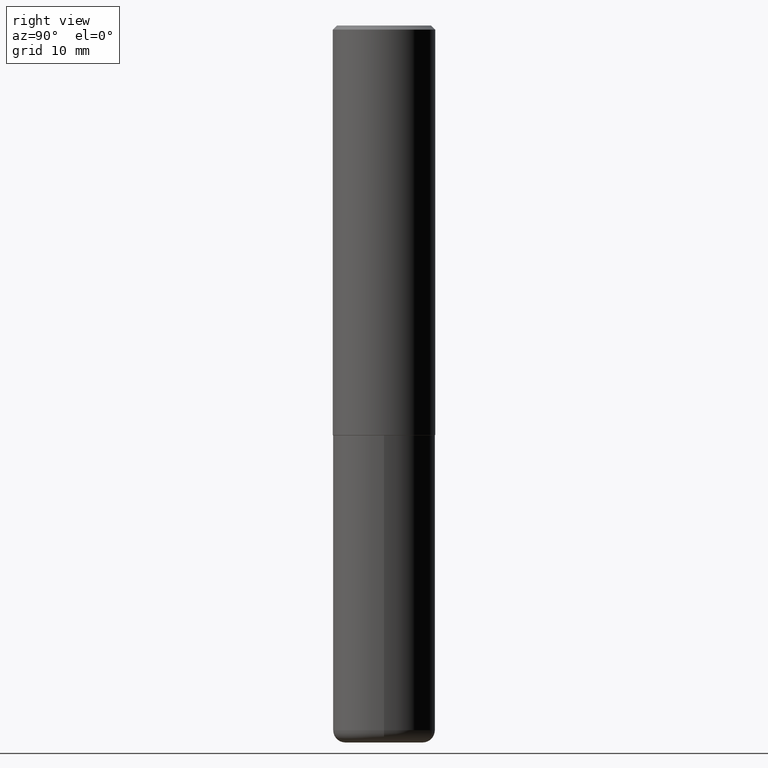
[diagram: clean part render]
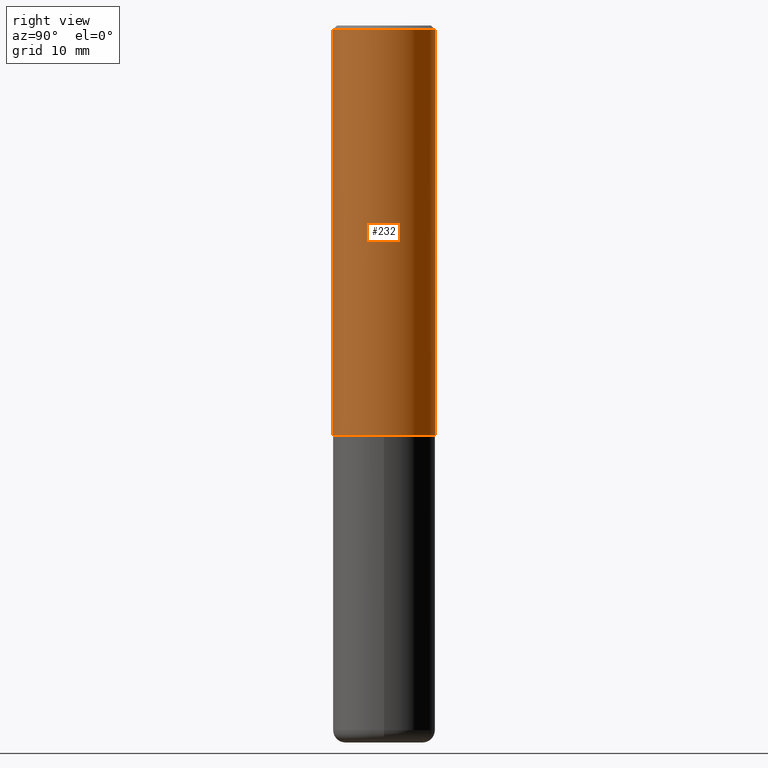
[diagram: same view with one face highlighted and labeled with its STEP entity id]
A machine part, right view. The second image highlights one B-rep face of the part: STEP entity #232.
In plain terms, the highlighted cylindrical surface (partial cylindrical patch) has radius 6.35 mm, axis along (-0, 0, 1).
Its self-contained STEP definition (entity closure, byte-faithful):
#6 = CIRCLE ( 'NONE', #179, 0.2500000000000002776 ) ;
#10 = VECTOR ( 'NONE', #376, 39.37007874015748143 ) ;
#13 = DIRECTION ( 'NONE',  ( -6.982962677686266711E-15, -1.000000000000000000, 3.493471632758652550E-15 ) ) ;
#40 = CARTESIAN_POINT ( 'NONE',  ( -1.745740669421519543E-15, -0.2500000000000072720, -1.998999999999999000 ) ) ;
#42 = EDGE_CURVE ( 'NONE', #229, #252, #275, .T. ) ;
#61 = ORIENTED_EDGE ( 'NONE', *, *, #373, .F. ) ;
#78 = AXIS2_PLACEMENT_3D ( 'NONE', #227, #391, #13 ) ;
#91 = ORIENTED_EDGE ( 'NONE', *, *, #185, .F. ) ;
#92 = DIRECTION ( 'NONE',  ( -2.444078991372175563E-29, 3.493471632758652550E-15, 1.000000000000000000 ) ) ;
#104 = DIRECTION ( 'NONE',  ( -2.444078991372175563E-29, 3.493471632758652550E-15, 1.000000000000000000 ) ) ;
#111 = LINE ( 'NONE', #233, #10 ) ;
#113 = DIRECTION ( 'NONE',  ( -6.982962677686265922E-15, -1.000000000000000000, 3.278217592397112312E-15 ) ) ;
#117 = CARTESIAN_POINT ( 'NONE',  ( -1.715124499442882496E-15, -0.2500000000000001110, -0.01999999999999921632 ) ) ;
#137 = VECTOR ( 'NONE', #92, 39.37007874015748143 ) ;
#179 = AXIS2_PLACEMENT_3D ( 'NONE', #397, #392, #113 ) ;
#185 = EDGE_CURVE ( 'NONE', #349, #223, #111, .T. ) ;
#209 = ORIENTED_EDGE ( 'NONE', *, *, #42, .T. ) ;
#215 = CARTESIAN_POINT ( 'NONE',  ( 1.776356839400276103E-15, 0.2499999999999932832, -1.999000000000000776 ) ) ;
#223 = VERTEX_POINT ( 'NONE', #117 ) ;
#227 = CARTESIAN_POINT ( 'NONE',  ( 0.000000000000000000, 0.000000000000000000, 0.000000000000000000 ) ) ;
#229 = VERTEX_POINT ( 'NONE', #215 ) ;
#232 = ADVANCED_FACE ( 'NONE', ( #281 ), #413, .T. ) ;
#233 = CARTESIAN_POINT ( 'NONE',  ( -1.745740669421567467E-15, -0.2500000000000001110, 8.733679081896635319E-16 ) ) ;
#251 = CIRCLE ( 'NONE', #309, 0.2500000000000000555 ) ;
#252 = VERTEX_POINT ( 'NONE', #410 ) ;
#262 = CARTESIAN_POINT ( 'NONE',  ( 4.888157982744373443E-31, -6.986943265517335816E-17, -0.02000000000000009062 ) ) ;
#275 = LINE ( 'NONE', #378, #137 ) ;
#281 = FACE_OUTER_BOUND ( 'NONE', #383, .T. ) ;
#309 = AXIS2_PLACEMENT_3D ( 'NONE', #262, #104, #353 ) ;
#320 = ORIENTED_EDGE ( 'NONE', *, *, #330, .T. ) ;
#330 = EDGE_CURVE ( 'NONE', #349, #229, #6, .T. ) ;
#349 = VERTEX_POINT ( 'NONE', #40 ) ;
#353 = DIRECTION ( 'NONE',  ( -6.982962677686265133E-15, -1.000000000000000000, 3.500180241882336472E-15 ) ) ;
#373 = EDGE_CURVE ( 'NONE', #223, #252, #251, .T. ) ;
#376 = DIRECTION ( 'NONE',  ( -2.444078991372175563E-29, 3.493471632758652550E-15, 1.000000000000000000 ) ) ;
#378 = CARTESIAN_POINT ( 'NONE',  ( 1.776356839400251254E-15, 0.2500000000000001110, -8.733679081896635319E-16 ) ) ;
#383 = EDGE_LOOP ( 'NONE', ( #320, #209, #61, #91 ) ) ;
#391 = DIRECTION ( 'NONE',  ( -2.444078991372175563E-29, 3.493471632758652550E-15, 1.000000000000000000 ) ) ;
#392 = DIRECTION ( 'NONE',  ( -2.444078991372175563E-29, 3.493471632758652550E-15, 1.000000000000000000 ) ) ;
#397 = CARTESIAN_POINT ( 'NONE',  ( 4.885713903752978284E-29, -6.983449793884546288E-15, -1.998999999999999888 ) ) ;
#410 = CARTESIAN_POINT ( 'NONE',  ( 1.745740669421567269E-15, 0.2499999999999999722, -0.02000000000000096492 ) ) ;
#413 = CYLINDRICAL_SURFACE ( 'NONE', #78, 0.2500000000000001110 ) ;